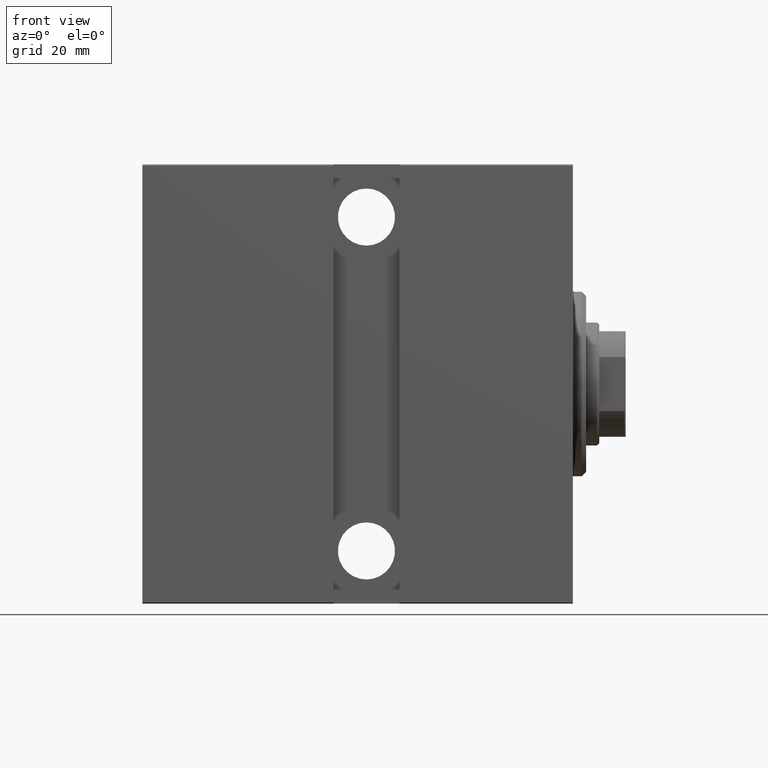
[diagram: clean part render]
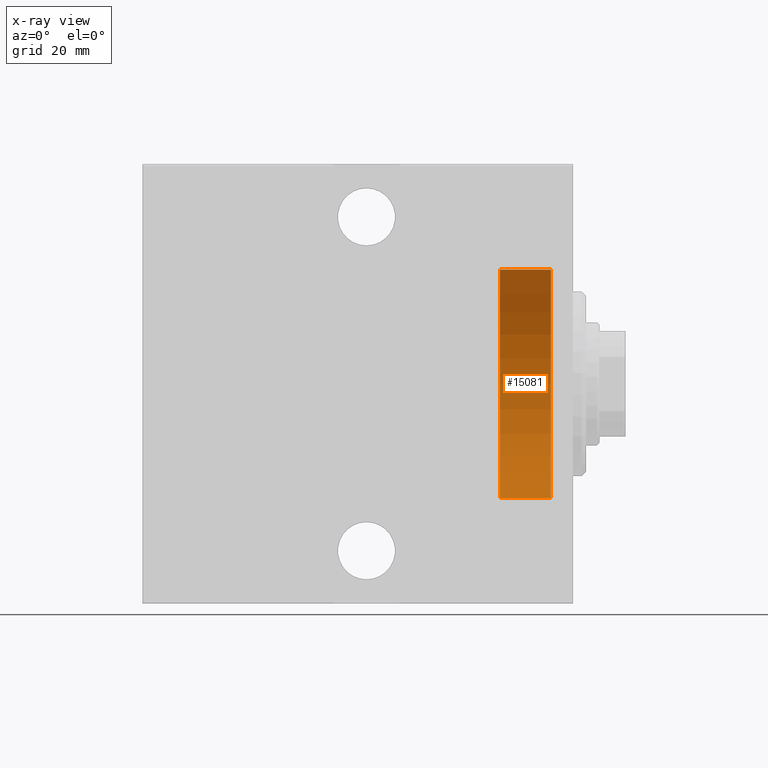
[diagram: x-ray — body ghosted, one internal face saturated and labeled with its STEP entity id]
A machine part, front view, then the same camera in x-ray: the body is ghosted and one INTERNAL B-rep face — a face not visible from any outside direction — is saturated and labeled: STEP entity #15081.
In plain terms, the highlighted cylindrical surface (partial cylindrical patch) has radius 26 mm, axis along (1, 0, 0).
Its self-contained STEP definition (entity closure, byte-faithful):
#4 = VERTEX_POINT ( 'NONE', #21598 ) ;
#530 = DIRECTION ( 'NONE',  ( 1.000000000000000000, -0.000000000000000000, -0.000000000000000000 ) ) ;
#3132 = CARTESIAN_POINT ( 'NONE',  ( -5.000000000000000888, 0.000000000000000000, 0.000000000000000000 ) ) ;
#5332 = VECTOR ( 'NONE', #19347, 1000.000000000000000 ) ;
#5412 = AXIS2_PLACEMENT_3D ( 'NONE', #17140, #30334, #37057 ) ;
#5676 = CARTESIAN_POINT ( 'NONE',  ( -16.60000000000000142, 3.184081677783117796E-15, 26.00000000000000355 ) ) ;
#6932 = CARTESIAN_POINT ( 'NONE',  ( -5.000000000000000888, 0.000000000000000000, -26.00000000000000355 ) ) ;
#10590 = VERTEX_POINT ( 'NONE', #18180 ) ;
#11332 = EDGE_LOOP ( 'NONE', ( #32970, #13427, #12726, #25316 ) ) ;
#12726 = ORIENTED_EDGE ( 'NONE', *, *, #13937, .T. ) ;
#12856 = EDGE_CURVE ( 'NONE', #4, #37254, #26481, .T. ) ;
#13427 = ORIENTED_EDGE ( 'NONE', *, *, #42299, .T. ) ;
#13937 = EDGE_CURVE ( 'NONE', #10590, #37254, #42677, .T. ) ;
#15081 = ADVANCED_FACE ( 'NONE', ( #20226 ), #20027, .T. ) ;
#15889 = CARTESIAN_POINT ( 'NONE',  ( -16.60000000000000142, 0.000000000000000000, -26.00000000000000355 ) ) ;
#16071 = VERTEX_POINT ( 'NONE', #17862 ) ;
#16341 = CARTESIAN_POINT ( 'NONE',  ( -16.60000000000000142, 0.000000000000000000, 0.000000000000000000 ) ) ;
#16426 = AXIS2_PLACEMENT_3D ( 'NONE', #16341, #530, #20437 ) ;
#17140 = CARTESIAN_POINT ( 'NONE',  ( -16.60000000000000142, 0.000000000000000000, 0.000000000000000000 ) ) ;
#17862 = CARTESIAN_POINT ( 'NONE',  ( -16.60000000000000142, 3.184081677783117796E-15, 26.00000000000000355 ) ) ;
#18180 = CARTESIAN_POINT ( 'NONE',  ( -5.000000000000000888, 3.184081677783117796E-15, 26.00000000000000355 ) ) ;
#19347 = DIRECTION ( 'NONE',  ( 1.000000000000000000, -0.000000000000000000, -0.000000000000000000 ) ) ;
#20027 = CYLINDRICAL_SURFACE ( 'NONE', #16426, 26.00000000000000355 ) ;
#20226 = FACE_OUTER_BOUND ( 'NONE', #11332, .T. ) ;
#20437 = DIRECTION ( 'NONE',  ( 0.000000000000000000, 0.000000000000000000, -1.000000000000000000 ) ) ;
#21598 = CARTESIAN_POINT ( 'NONE',  ( -16.60000000000000142, 0.000000000000000000, -26.00000000000000355 ) ) ;
#23979 = AXIS2_PLACEMENT_3D ( 'NONE', #3132, #29312, #42549 ) ;
#24932 = LINE ( 'NONE', #5676, #35870 ) ;
#25316 = ORIENTED_EDGE ( 'NONE', *, *, #12856, .F. ) ;
#26481 = LINE ( 'NONE', #15889, #5332 ) ;
#29312 = DIRECTION ( 'NONE',  ( -1.000000000000000000, -0.000000000000000000, -0.000000000000000000 ) ) ;
#30334 = DIRECTION ( 'NONE',  ( -1.000000000000000000, 0.000000000000000000, 0.000000000000000000 ) ) ;
#31690 = CIRCLE ( 'NONE', #5412, 26.00000000000000355 ) ;
#32970 = ORIENTED_EDGE ( 'NONE', *, *, #36137, .F. ) ;
#35870 = VECTOR ( 'NONE', #41422, 1000.000000000000000 ) ;
#36137 = EDGE_CURVE ( 'NONE', #16071, #4, #31690, .T. ) ;
#37057 = DIRECTION ( 'NONE',  ( 0.000000000000000000, 0.000000000000000000, 1.000000000000000000 ) ) ;
#37254 = VERTEX_POINT ( 'NONE', #6932 ) ;
#41422 = DIRECTION ( 'NONE',  ( 1.000000000000000000, -0.000000000000000000, -0.000000000000000000 ) ) ;
#42299 = EDGE_CURVE ( 'NONE', #16071, #10590, #24932, .T. ) ;
#42549 = DIRECTION ( 'NONE',  ( 0.000000000000000000, 0.000000000000000000, -1.000000000000000000 ) ) ;
#42677 = CIRCLE ( 'NONE', #23979, 26.00000000000000355 ) ;